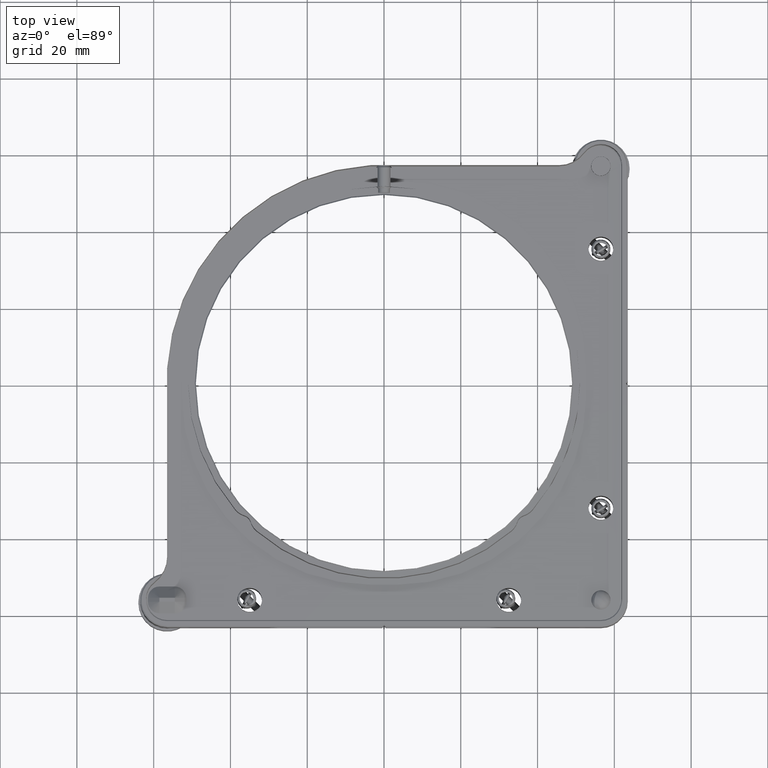
[diagram: clean part render]
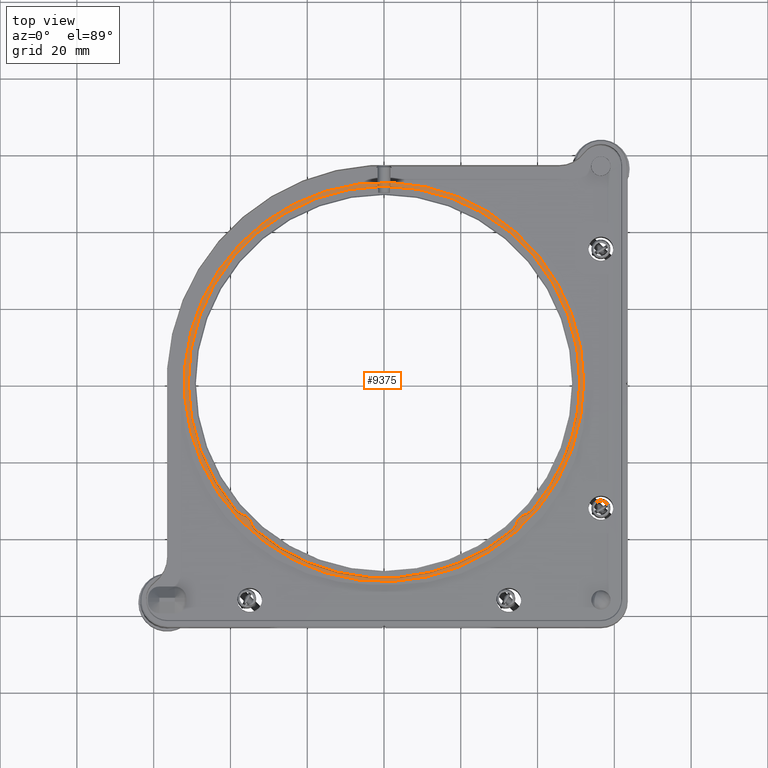
[diagram: same view with one face highlighted and labeled with its STEP entity id]
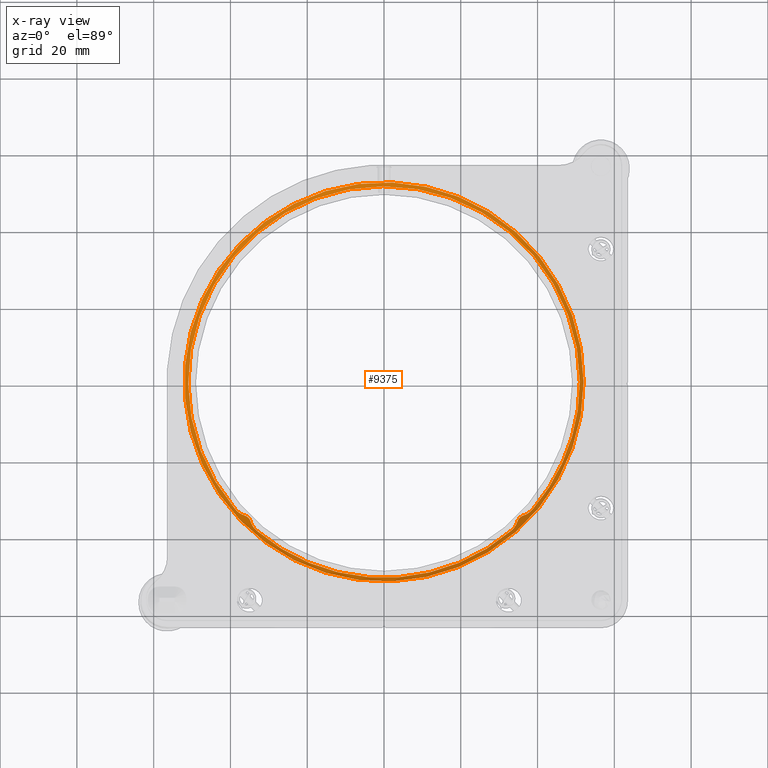
[diagram: x-ray of the same camera — body ghosted, the highlighted face saturated]
A machine part, top view. The second image highlights one B-rep face of the part: STEP entity #9375.
The next image is the same camera in x-ray: the body ghosted, the highlighted face saturated — about 0% of this face is hidden behind the body in this view.
In plain terms, the highlighted conical surface has half-angle 45 deg.
Its self-contained STEP definition (entity closure, byte-faithful):
#187 = CONICAL_SURFACE ( 'NONE', #533, 51.99999999999999289, 0.7853981633974491672 ) ;
#239 = CARTESIAN_POINT ( 'NONE',  ( 36.80601522340703724, -34.60435904191761836, 27.51256510379613829 ) ) ;
#358 = ORIENTED_EDGE ( 'NONE', *, *, #3958, .T. ) ;
#533 = AXIS2_PLACEMENT_3D ( 'NONE', #4513, #7896, #17959 ) ;
#716 = VERTEX_POINT ( 'NONE', #17318 ) ;
#827 = FACE_OUTER_BOUND ( 'NONE', #10010, .T. ) ;
#1263 = CARTESIAN_POINT ( 'NONE',  ( -34.60435904191785284, -36.80601522340689513, 27.51256510379616671 ) ) ;
#1454 = CARTESIAN_POINT ( 'NONE',  ( 34.79095864238782099, -36.20258419780066106, 27.20494416696365292 ) ) ;
#2222 = VERTEX_POINT ( 'NONE', #12970 ) ;
#2573 = CARTESIAN_POINT ( 'NONE',  ( -33.57249864034226050, -38.37034146958252023, 27.97899639285271078 ) ) ;
#2589 = CARTESIAN_POINT ( 'NONE',  ( -36.20258419780083159, -34.79095864238769309, 27.20494416696363871 ) ) ;
#2777 = VERTEX_POINT ( 'NONE', #21363 ) ;
#2806 = CARTESIAN_POINT ( 'NONE',  ( -34.79097908785151105, -36.20251808068648813, 27.20491046135729718 ) ) ;
#2973 = VERTEX_POINT ( 'NONE', #12690 ) ;
#3182 = ORIENTED_EDGE ( 'NONE', *, *, #20729, .T. ) ;
#3632 = AXIS2_PLACEMENT_3D ( 'NONE', #17407, #7777, #21117 ) ;
#3958 = EDGE_CURVE ( 'NONE', #13107, #2973, #17928, .T. ) ;
#4158 = CARTESIAN_POINT ( 'NONE',  ( -37.21612798591932858, -34.39874004675901631, 27.67337566094628443 ) ) ;
#4212 = CARTESIAN_POINT ( 'NONE',  ( 33.90037109133786686, -38.01901154564701102, 27.93121981718898184 ) ) ;
#4265 = CARTESIAN_POINT ( 'NONE',  ( -36.59538252579995543, -34.66949320895838582, 27.40518741684282844 ) ) ;
#4440 = CARTESIAN_POINT ( 'NONE',  ( -35.67036871948677401, -35.07820100674531716, 27.02343474588055372 ) ) ;
#4513 = CARTESIAN_POINT ( 'NONE',  ( -2.775557561562890089E-14, 2.775557561562891351E-14, 28.99528137423859420 ) ) ;
#5141 = DIRECTION ( 'NONE',  ( -0.000000000000000000, -0.000000000000000000, -1.000000000000000000 ) ) ;
#5591 = CARTESIAN_POINT ( 'NONE',  ( -38.01901154564716734, -33.90037109133771764, 27.93121981718896762 ) ) ;
#5597 = CARTESIAN_POINT ( 'NONE',  ( -36.38453484914894176, -34.73469385419137012, 27.29770013649429217 ) ) ;
#5651 = CARTESIAN_POINT ( 'NONE',  ( -35.20663290782941601, -35.50388747496018738, 26.99516426133459390 ) ) ;
#5908 = CARTESIAN_POINT ( 'NONE',  ( -38.38097400630665135, -33.58784487916622652, 27.99528137423859420 ) ) ;
#6066 = CARTESIAN_POINT ( 'NONE',  ( 34.58977521549242340, -36.80397895873975500, 27.50212406032681045 ) ) ;
#6179 = CARTESIAN_POINT ( 'NONE',  ( 34.39874004675914421, -37.21612798591913673, 27.67337566094630219 ) ) ;
#6716 = EDGE_CURVE ( 'NONE', #716, #2777, #19552, .T. ) ;
#6730 = VERTEX_POINT ( 'NONE', #13070 ) ;
#7121 = CARTESIAN_POINT ( 'NONE',  ( 38.54138379889667476, -33.40093280294693301, 27.99528137423860130 ) ) ;
#7124 = EDGE_CURVE ( 'NONE', #11187, #716, #20756, .T. ) ;
#7432 = EDGE_LOOP ( 'NONE', ( #10221, #12647, #14837, #358, #20958, #11509, #21447, #8438 ) ) ;
#7595 = CARTESIAN_POINT ( 'NONE',  ( -33.88745378989320756, -38.00834827268483451, 27.91617581287706429 ) ) ;
#7653 = CARTESIAN_POINT ( 'NONE',  ( -38.70167431882207154, -33.21415970515929672, 27.99528137423859420 ) ) ;
#7705 = CARTESIAN_POINT ( 'NONE',  ( -33.21415970515953830, -38.70167431882187969, 27.99528137423860130 ) ) ;
#7777 = DIRECTION ( 'NONE',  ( -0.000000000000000000, -0.000000000000000000, -1.000000000000000000 ) ) ;
#7896 = DIRECTION ( 'NONE',  ( -3.336006684570783964E-17, 0.000000000000000000, 1.000000000000000000 ) ) ;
#8109 = B_SPLINE_CURVE_WITH_KNOTS ( 'NONE', 3,
 ( #19614, #9232, #6066, #6179, #12842, #4212, #19289, #17544 ),
 .UNSPECIFIED., .F., .F.,
 ( 4, 2, 2, 4 ),
 ( 0.000000000000000000, 0.0007282091272315041478, 0.001456418254463008296, 0.002912836508926013989 ),
 .UNSPECIFIED. ) ;
#8114 = CARTESIAN_POINT ( 'NONE',  ( 35.07820100674543085, -35.67036871948658217, 27.02343474588056083 ) ) ;
#8438 = ORIENTED_EDGE ( 'NONE', *, *, #20063, .T. ) ;
#8559 = DIRECTION ( 'NONE',  ( 1.000000000000000000, 0.000000000000000000, 0.000000000000000000 ) ) ;
#8648 = CARTESIAN_POINT ( 'NONE',  ( 36.38453484914888492, -34.73469385419136302, 27.29770013649429572 ) ) ;
#8804 = B_SPLINE_CURVE_WITH_KNOTS ( 'NONE', 3,
 ( #20561, #4265, #17605, #4158, #12571, #5591, #5908, #7653 ),
 .UNSPECIFIED., .F., .F.,
 ( 4, 2, 2, 4 ),
 ( 0.000000000000000000, 0.0007282091272314935226, 0.001456418254462987045, 0.002912836508925993606 ),
 .UNSPECIFIED. ) ;
#8826 = VERTEX_POINT ( 'NONE', #15203 ) ;
#8866 = CARTESIAN_POINT ( 'NONE',  ( 36.02248282612955421, -34.86904982181427926, 27.12940729039731025 ) ) ;
#9232 = CARTESIAN_POINT ( 'NONE',  ( 34.66949320895854925, -36.59538252579979201, 27.40518741684285331 ) ) ;
#9246 = CARTESIAN_POINT ( 'NONE',  ( -34.86904982181447821, -36.02248282612941921, 27.12940729039729959 ) ) ;
#9375 = ADVANCED_FACE ( 'NONE', ( #19485, #827 ), #187, .T. ) ;
#9411 = CIRCLE ( 'NONE', #11846, 52.00000000000000000 ) ;
#9771 = CARTESIAN_POINT ( 'NONE',  ( -2.775557561562890089E-14, 2.775557561562891351E-14, 27.99528137423859420 ) ) ;
#9970 = CARTESIAN_POINT ( 'NONE',  ( 34.86873782986918258, -36.02314863961937874, 27.12966932385882757 ) ) ;
#10010 = EDGE_LOOP ( 'NONE', ( #3182 ) ) ;
#10183 = CARTESIAN_POINT ( 'NONE',  ( 36.20251808068661603, -34.79097908785131921, 27.20491046135731139 ) ) ;
#10221 = ORIENTED_EDGE ( 'NONE', *, *, #6716, .F. ) ;
#11101 = CARTESIAN_POINT ( 'NONE',  ( -35.07878222650838751, -35.66953077632118152, 27.02324420743829236 ) ) ;
#11187 = VERTEX_POINT ( 'NONE', #13085 ) ;
#11320 = CARTESIAN_POINT ( 'NONE',  ( 33.21415970515943883, -38.70167431882191522, 27.99528137423860130 ) ) ;
#11509 = ORIENTED_EDGE ( 'NONE', *, *, #14859, .F. ) ;
#11577 = EDGE_CURVE ( 'NONE', #2222, #16415, #8109, .T. ) ;
#11623 = DIRECTION ( 'NONE',  ( -0.000000000000000000, -0.000000000000000000, -1.000000000000000000 ) ) ;
#11651 = EDGE_CURVE ( 'NONE', #8826, #2973, #15153, .T. ) ;
#11803 = DIRECTION ( 'NONE',  ( 1.000000000000000000, 0.000000000000000000, 0.000000000000000000 ) ) ;
#11846 = AXIS2_PLACEMENT_3D ( 'NONE', #20114, #5141, #11803 ) ;
#11925 = CARTESIAN_POINT ( 'NONE',  ( 38.70167431882204312, -33.21415970515927540, 27.99528137423859775 ) ) ;
#12141 = CARTESIAN_POINT ( 'NONE',  ( 38.37034146958267655, -33.57249864034199760, 27.97899639285269302 ) ) ;
#12571 = CARTESIAN_POINT ( 'NONE',  ( -37.42066961167637373, -34.28681988825812255, 27.74801419467383212 ) ) ;
#12647 = ORIENTED_EDGE ( 'NONE', *, *, #7124, .F. ) ;
#12690 = CARTESIAN_POINT ( 'NONE',  ( -34.73469385419157618, -36.38453484914874991, 27.29770013649429927 ) ) ;
#12747 = CARTESIAN_POINT ( 'NONE',  ( -36.02314863961954927, -34.86873782986904047, 27.12966932385882046 ) ) ;
#12842 = CARTESIAN_POINT ( 'NONE',  ( 34.28681988825825755, -37.42066961167618899, 27.74801419467384633 ) ) ;
#12970 = CARTESIAN_POINT ( 'NONE',  ( 34.73469385419150512, -36.38453484914876412, 27.29770013649430282 ) ) ;
#13070 = CARTESIAN_POINT ( 'NONE',  ( 51.99999999999997158, 2.775557561562891351E-14, 28.99528137423859775 ) ) ;
#13085 = CARTESIAN_POINT ( 'NONE',  ( -38.70167431882207154, -33.21415970515929672, 27.99528137423859420 ) ) ;
#13107 = VERTEX_POINT ( 'NONE', #5597 ) ;
#13469 = CARTESIAN_POINT ( 'NONE',  ( 38.00834827268499794, -33.88745378989295176, 27.91617581287704652 ) ) ;
#13528 = AXIS2_PLACEMENT_3D ( 'NONE', #9771, #11623, #8559 ) ;
#14165 = CARTESIAN_POINT ( 'NONE',  ( -36.38453484914894176, -34.73469385419137012, 27.29770013649429217 ) ) ;
#14262 = CARTESIAN_POINT ( 'NONE',  ( -34.03151590132080173, -37.81630320933989253, 27.86928510191586028 ) ) ;
#14562 = CIRCLE ( 'NONE', #13528, 51.00000000000000711 ) ;
#14837 = ORIENTED_EDGE ( 'NONE', *, *, #17130, .F. ) ;
#14859 = EDGE_CURVE ( 'NONE', #16415, #8826, #14562, .T. ) ;
#14889 = CARTESIAN_POINT ( 'NONE',  ( 34.73469385419150512, -36.38453484914876412, 27.29770013649430282 ) ) ;
#15102 = CARTESIAN_POINT ( 'NONE',  ( 35.50388747496030106, -35.20663290782923838, 26.99516426133459390 ) ) ;
#15153 = B_SPLINE_CURVE_WITH_KNOTS ( 'NONE', 3,
 ( #7705, #19399, #2573, #7595, #14262, #19508, #1263, #20939 ),
 .UNSPECIFIED., .F., .F.,
 ( 4, 2, 2, 4 ),
 ( 0.000000000000000000, 0.0007258458130177601305, 0.001451691626035520261, 0.002903383252071049629 ),
 .UNSPECIFIED. ) ;
#15203 = CARTESIAN_POINT ( 'NONE',  ( -33.21415970515953830, -38.70167431882187969, 27.99528137423860130 ) ) ;
#15205 = CARTESIAN_POINT ( 'NONE',  ( 37.21774396442619803, -34.41743235491746589, 27.68561265143047478 ) ) ;
#15917 = CARTESIAN_POINT ( 'NONE',  ( -35.50591592589074708, -35.20492091793509815, 26.99539922166479045 ) ) ;
#16134 = CARTESIAN_POINT ( 'NONE',  ( -34.73469385419157618, -36.38453484914874991, 27.29770013649429927 ) ) ;
#16415 = VERTEX_POINT ( 'NONE', #11320 ) ;
#16856 = CARTESIAN_POINT ( 'NONE',  ( 35.66953077632130942, -35.07878222650818856, 27.02324420743829236 ) ) ;
#17130 = EDGE_CURVE ( 'NONE', #13107, #11187, #8804, .T. ) ;
#17318 = CARTESIAN_POINT ( 'NONE',  ( 38.70167431882204312, -33.21415970515927540, 27.99528137423859775 ) ) ;
#17407 = CARTESIAN_POINT ( 'NONE',  ( -2.775557561562890089E-14, 2.775557561562891351E-14, 27.99528137423859420 ) ) ;
#17544 = CARTESIAN_POINT ( 'NONE',  ( 33.21415970515943883, -38.70167431882191522, 27.99528137423860130 ) ) ;
#17605 = CARTESIAN_POINT ( 'NONE',  ( -36.80397895873993264, -34.58977521549228129, 27.50212406032679269 ) ) ;
#17928 = B_SPLINE_CURVE_WITH_KNOTS ( 'NONE', 3,
 ( #14165, #2589, #12747, #4440, #15917, #5651, #11101, #9246, #2806, #16134 ),
 .UNSPECIFIED., .F., .F.,
 ( 4, 2, 2, 2, 4 ),
 ( 0.000000000000000000, 0.0006285816710533934266, 0.001257163342106786853, 0.001885745013160180280, 0.002514326684213573707 ),
 .UNSPECIFIED. ) ;
#17959 = DIRECTION ( 'NONE',  ( 1.000000000000000000, 0.000000000000000000, 6.672013369141566696E-17 ) ) ;
#18177 = CARTESIAN_POINT ( 'NONE',  ( 35.20492091793523315, -35.50591592589055523, 26.99539922166480466 ) ) ;
#18502 = CARTESIAN_POINT ( 'NONE',  ( 37.81630320934004885, -34.03151590132058146, 27.86928510191585673 ) ) ;
#19289 = CARTESIAN_POINT ( 'NONE',  ( 33.58784487916638284, -38.38097400630649503, 27.99528137423861551 ) ) ;
#19399 = CARTESIAN_POINT ( 'NONE',  ( -33.40093280294719591, -38.54138379889650423, 27.99528137423861907 ) ) ;
#19485 = FACE_BOUND ( 'NONE', #7432, .T. ) ;
#19508 = CARTESIAN_POINT ( 'NONE',  ( -34.41743235491772168, -37.21774396442604882, 27.68561265143049610 ) ) ;
#19552 = B_SPLINE_CURVE_WITH_KNOTS ( 'NONE', 3,
 ( #11925, #7121, #12141, #13469, #18502, #15205, #239, #20241 ),
 .UNSPECIFIED., .F., .F.,
 ( 4, 2, 2, 4 ),
 ( 6.938893903907228378E-18, 0.0007258458130177785619, 0.001451691626035550185, 0.002903383252071079987 ),
 .UNSPECIFIED. ) ;
#19614 = CARTESIAN_POINT ( 'NONE',  ( 34.73469385419150512, -36.38453484914876412, 27.29770013649430282 ) ) ;
#20063 = EDGE_CURVE ( 'NONE', #2222, #2777, #21058, .T. ) ;
#20114 = CARTESIAN_POINT ( 'NONE',  ( -2.775557561562890089E-14, 2.775557561562891351E-14, 28.99528137423859775 ) ) ;
#20241 = CARTESIAN_POINT ( 'NONE',  ( 36.38453484914888492, -34.73469385419136302, 27.29770013649429572 ) ) ;
#20561 = CARTESIAN_POINT ( 'NONE',  ( -36.38453484914894176, -34.73469385419137012, 27.29770013649429217 ) ) ;
#20729 = EDGE_CURVE ( 'NONE', #6730, #6730, #9411, .T. ) ;
#20756 = CIRCLE ( 'NONE', #3632, 51.00000000000000000 ) ;
#20939 = CARTESIAN_POINT ( 'NONE',  ( -34.73469385419157618, -36.38453484914874991, 27.29770013649429927 ) ) ;
#20958 = ORIENTED_EDGE ( 'NONE', *, *, #11651, .F. ) ;
#21058 = B_SPLINE_CURVE_WITH_KNOTS ( 'NONE', 3,
 ( #14889, #1454, #9970, #8114, #18177, #15102, #16856, #8866, #10183, #8648 ),
 .UNSPECIFIED., .F., .F.,
 ( 4, 2, 2, 2, 4 ),
 ( 0.000000000000000000, 0.0006285816710533984140, 0.001257163342106796828, 0.001885745013160195242, 0.002514326684213593656 ),
 .UNSPECIFIED. ) ;
#21117 = DIRECTION ( 'NONE',  ( 1.000000000000000000, 0.000000000000000000, 0.000000000000000000 ) ) ;
#21363 = CARTESIAN_POINT ( 'NONE',  ( 36.38453484914888492, -34.73469385419136302, 27.29770013649429572 ) ) ;
#21447 = ORIENTED_EDGE ( 'NONE', *, *, #11577, .F. ) ;